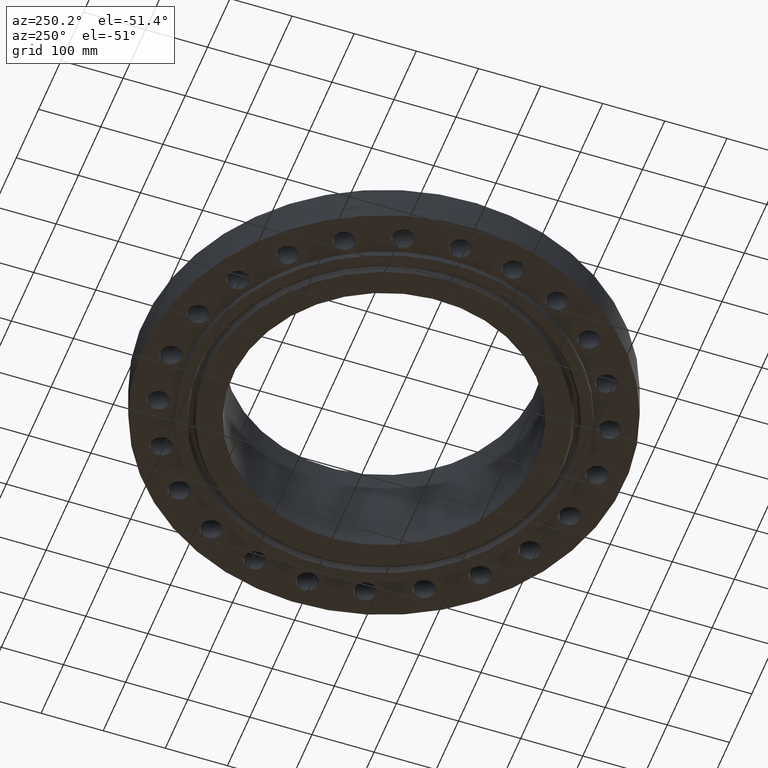
[diagram: clean part render]
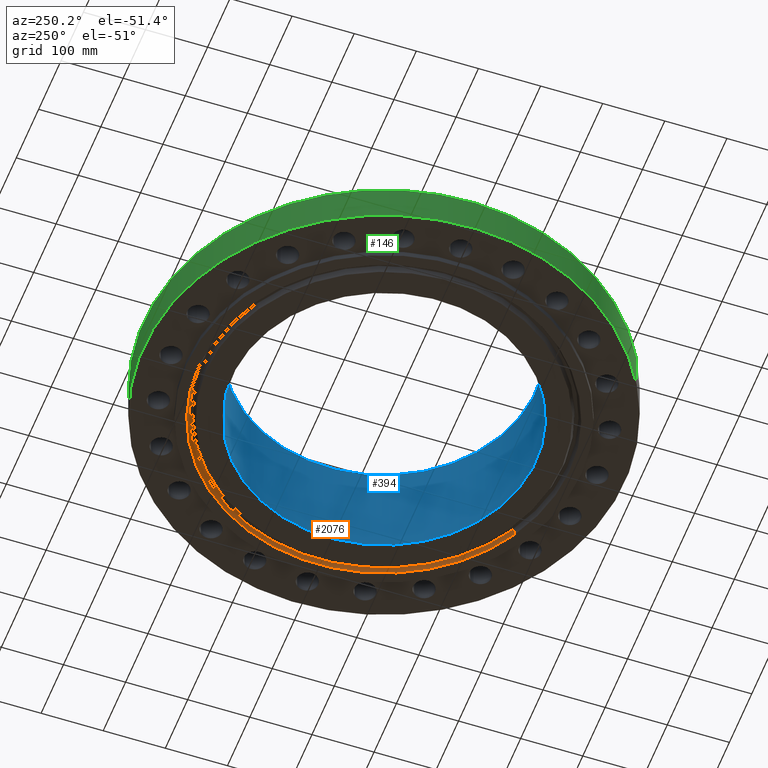
[diagram: same view with three faces highlighted in distinct colors, each labeled with its STEP entity id]
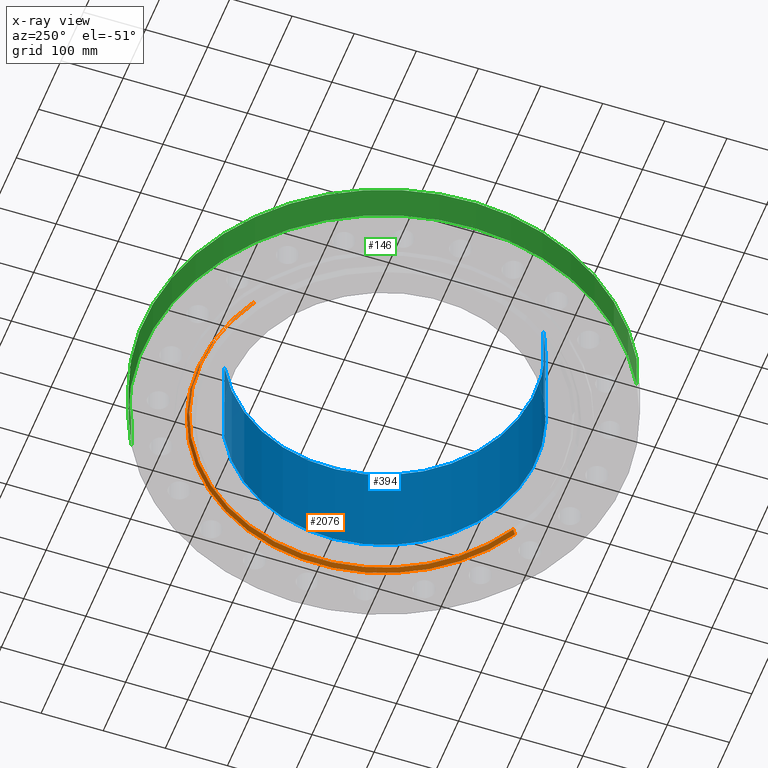
[diagram: x-ray of the same camera — body ghosted, the three highlighted faces saturated]
A machine part, auxiliary view with three faces highlighted in distinct colors.
The next image is the same camera in x-ray (body ghosted, the three faces saturated) — at least one of them is partly hidden behind the body in this view.
Their STEP definitions:

[orange] entity #2076 — the highlighted conical surface has half-angle 23 deg.
#1937=AXIS2_PLACEMENT_3D('Circle Axis2P3D',#1935,#1936,$) ;
#2011=AXIS2_PLACEMENT_3D('Cone Axis2P3D',#2008,#2009,#2010) ;
#2032=AXIS2_PLACEMENT_3D('Circle Axis2P3D',#2030,#2031,$) ;
#1930=CARTESIAN_POINT('Vertex',(5.64068117447,-10.325197632,-0.375000000001)) ;
#1932=CARTESIAN_POINT('Vertex',(-5.64068117447,10.325197632,-0.375000000001)) ;
#1935=CARTESIAN_POINT('Axis2P3D Location',(8.39223703654E-016,-1.1189649382E-015,-0.375000000001)) ;
#1977=CARTESIAN_POINT('Vertex',(-5.57217843689,10.1998042119,-0.0383839389053)) ;
#1979=CARTESIAN_POINT('Vertex',(5.57217843689,-10.1998042119,-0.0383839389053)) ;
#2008=CARTESIAN_POINT('Axis2P3D Location',(0.,0.,-0.0383839389053)) ;
#2013=CARTESIAN_POINT('Line Origine',(-5.60642980568,10.2625009219,-0.206691969453)) ;
#2018=CARTESIAN_POINT('Line Origine',(5.60642980568,-10.2625009219,-0.206691969453)) ;
#2030=CARTESIAN_POINT('Axis2P3D Location',(0.,0.,-0.0383839389053)) ;
#1936=DIRECTION('Axis2P3D Direction',(0.,0.,-0.0393700787402)) ;
#2009=DIRECTION('Axis2P3D Direction',(-0.,-0.,-0.0393700787402)) ;
#2010=DIRECTION('Axis2P3D XDirection',(-0.0188750212049,0.0345504945626,0.)) ;
#2014=DIRECTION('Vector Direction',(-0.00737505833565,0.0134999537303,-0.0362403485611)) ;
#2019=DIRECTION('Vector Direction',(0.00737505833565,-0.0134999537303,-0.0362403485611)) ;
#2031=DIRECTION('Axis2P3D Direction',(0.,0.,0.0393700787402)) ;
#2015=VECTOR('Line Direction',#2014,0.0393700787402) ;
#2020=VECTOR('Line Direction',#2019,0.0393700787402) ;
#2071=ORIENTED_EDGE('',*,*,#1939,.T.) ;
#2072=ORIENTED_EDGE('',*,*,#2022,.T.) ;
#2073=ORIENTED_EDGE('',*,*,#2034,.T.) ;
#2074=ORIENTED_EDGE('',*,*,#2017,.F.) ;
#2076=ADVANCED_FACE('PartBody',(#2075),#2012,.F.) ;
#1938=CIRCLE('generated circle',#1937,11.7655) ;
#2033=CIRCLE('generated circle',#2032,11.6226149594) ;
#2012=CONICAL_SURFACE('Cone',#2011,11.6226149594,0.401425727959) ;
#1939=EDGE_CURVE('',#1933,#1931,#1938,.T.) ;
#2017=EDGE_CURVE('',#1933,#1978,#2016,.F.) ;
#2022=EDGE_CURVE('',#1931,#1980,#2021,.F.) ;
#2034=EDGE_CURVE('',#1980,#1978,#2033,.T.) ;
#2070=EDGE_LOOP('',(#2071,#2072,#2073,#2074)) ;
#2075=FACE_OUTER_BOUND('',#2070,.T.) ;
#2016=LINE('Line',#2013,#2015) ;
#2021=LINE('Line',#2018,#2020) ;
#1931=VERTEX_POINT('',#1930) ;
#1933=VERTEX_POINT('',#1932) ;
#1978=VERTEX_POINT('',#1977) ;
#1980=VERTEX_POINT('',#1979) ;

[blue] entity #394 — the highlighted cylindrical surface (partial cylindrical patch) has radius 244.475 mm, axis along (0, 0, -1).
#358=AXIS2_PLACEMENT_3D('Cylinder Axis2P3D',#355,#356,#357) ;
#362=AXIS2_PLACEMENT_3D('Circle Axis2P3D',#360,#361,$) ;
#378=AXIS2_PLACEMENT_3D('Circle Axis2P3D',#376,#377,$) ;
#355=CARTESIAN_POINT('Axis2P3D Location',(0.,0.,2.97250000001)) ;
#360=CARTESIAN_POINT('Axis2P3D Location',(0.,0.,6.32000000003)) ;
#364=CARTESIAN_POINT('Vertex',(4.61447080908,8.44673215823,6.32000000003)) ;
#366=CARTESIAN_POINT('Vertex',(-4.61447080908,-8.44673215823,6.32000000003)) ;
#369=CARTESIAN_POINT('Line Origine',(4.61447080908,8.44673215823,2.97250000001)) ;
#373=CARTESIAN_POINT('Vertex',(4.61447080908,8.44673215823,-0.375000000002)) ;
#376=CARTESIAN_POINT('Axis2P3D Location',(0.,0.,-0.375000000002)) ;
#380=CARTESIAN_POINT('Vertex',(-4.61447080908,-8.44673215823,-0.375000000002)) ;
#383=CARTESIAN_POINT('Line Origine',(-4.61447080908,-8.44673215823,2.97250000001)) ;
#356=DIRECTION('Axis2P3D Direction',(0.,0.,-0.0393700787402)) ;
#357=DIRECTION('Axis2P3D XDirection',(-0.0188750212049,-0.0345504945626,0.)) ;
#361=DIRECTION('Axis2P3D Direction',(0.,0.,-0.0393700787402)) ;
#370=DIRECTION('Vector Direction',(0.,0.,-0.0393700787402)) ;
#377=DIRECTION('Axis2P3D Direction',(0.,0.,-0.0393700787402)) ;
#384=DIRECTION('Vector Direction',(0.,0.,-0.0393700787402)) ;
#371=VECTOR('Line Direction',#370,0.0393700787402) ;
#385=VECTOR('Line Direction',#384,0.0393700787402) ;
#389=ORIENTED_EDGE('',*,*,#368,.F.) ;
#390=ORIENTED_EDGE('',*,*,#375,.T.) ;
#391=ORIENTED_EDGE('',*,*,#382,.T.) ;
#392=ORIENTED_EDGE('',*,*,#387,.F.) ;
#394=ADVANCED_FACE('PartBody',(#393),#359,.F.) ;
#363=CIRCLE('generated circle',#362,9.62500000004) ;
#379=CIRCLE('generated circle',#378,9.62500000004) ;
#359=CYLINDRICAL_SURFACE('generated cylinder',#358,9.62500000004) ;
#368=EDGE_CURVE('',#365,#367,#363,.T.) ;
#375=EDGE_CURVE('',#365,#374,#372,.T.) ;
#382=EDGE_CURVE('',#374,#381,#379,.T.) ;
#387=EDGE_CURVE('',#367,#381,#386,.T.) ;
#388=EDGE_LOOP('',(#389,#390,#391,#392)) ;
#393=FACE_OUTER_BOUND('',#388,.T.) ;
#372=LINE('Line',#369,#371) ;
#386=LINE('Line',#383,#385) ;
#365=VERTEX_POINT('',#364) ;
#367=VERTEX_POINT('',#366) ;
#374=VERTEX_POINT('',#373) ;
#381=VERTEX_POINT('',#380) ;

[green] entity #146 — the highlighted cylindrical surface (partial cylindrical patch) has radius 387.35 mm, axis along (0, 0, -1).
#110=AXIS2_PLACEMENT_3D('Cylinder Axis2P3D',#107,#108,#109) ;
#114=AXIS2_PLACEMENT_3D('Circle Axis2P3D',#112,#113,$) ;
#130=AXIS2_PLACEMENT_3D('Circle Axis2P3D',#128,#129,$) ;
#107=CARTESIAN_POINT('Axis2P3D Location',(0.,0.,2.97250000001)) ;
#112=CARTESIAN_POINT('Axis2P3D Location',(0.,0.,1.67844740731E-015)) ;
#116=CARTESIAN_POINT('Vertex',(-7.31123946374,-13.3831340689,1.1189649382E-015)) ;
#118=CARTESIAN_POINT('Vertex',(7.31123946374,13.3831340689,1.1189649382E-015)) ;
#121=CARTESIAN_POINT('Line Origine',(-7.31123946374,-13.3831340689,1.22)) ;
#125=CARTESIAN_POINT('Vertex',(-7.31123946374,-13.3831340689,2.44000000001)) ;
#128=CARTESIAN_POINT('Axis2P3D Location',(0.,0.,2.44000000001)) ;
#132=CARTESIAN_POINT('Vertex',(7.31123946374,13.3831340689,2.44000000001)) ;
#135=CARTESIAN_POINT('Line Origine',(7.31123946374,13.3831340689,1.22)) ;
#108=DIRECTION('Axis2P3D Direction',(0.,0.,-0.0393700787402)) ;
#109=DIRECTION('Axis2P3D XDirection',(0.0188750212049,0.0345504945626,0.)) ;
#113=DIRECTION('Axis2P3D Direction',(0.,0.,-0.0393700787402)) ;
#122=DIRECTION('Vector Direction',(0.,0.,-0.0393700787402)) ;
#129=DIRECTION('Axis2P3D Direction',(0.,0.,-0.0393700787402)) ;
#136=DIRECTION('Vector Direction',(0.,0.,-0.0393700787402)) ;
#123=VECTOR('Line Direction',#122,0.0393700787402) ;
#137=VECTOR('Line Direction',#136,0.0393700787402) ;
#141=ORIENTED_EDGE('',*,*,#120,.F.) ;
#142=ORIENTED_EDGE('',*,*,#127,.T.) ;
#143=ORIENTED_EDGE('',*,*,#134,.T.) ;
#144=ORIENTED_EDGE('',*,*,#139,.F.) ;
#146=ADVANCED_FACE('PartBody',(#145),#111,.T.) ;
#115=CIRCLE('generated circle',#114,15.2500000001) ;
#131=CIRCLE('generated circle',#130,15.2500000001) ;
#111=CYLINDRICAL_SURFACE('generated cylinder',#110,15.2500000001) ;
#120=EDGE_CURVE('',#117,#119,#115,.T.) ;
#127=EDGE_CURVE('',#117,#126,#124,.F.) ;
#134=EDGE_CURVE('',#126,#133,#131,.T.) ;
#139=EDGE_CURVE('',#119,#133,#138,.F.) ;
#140=EDGE_LOOP('',(#141,#142,#143,#144)) ;
#145=FACE_OUTER_BOUND('',#140,.T.) ;
#124=LINE('Line',#121,#123) ;
#138=LINE('Line',#135,#137) ;
#117=VERTEX_POINT('',#116) ;
#119=VERTEX_POINT('',#118) ;
#126=VERTEX_POINT('',#125) ;
#133=VERTEX_POINT('',#132) ;